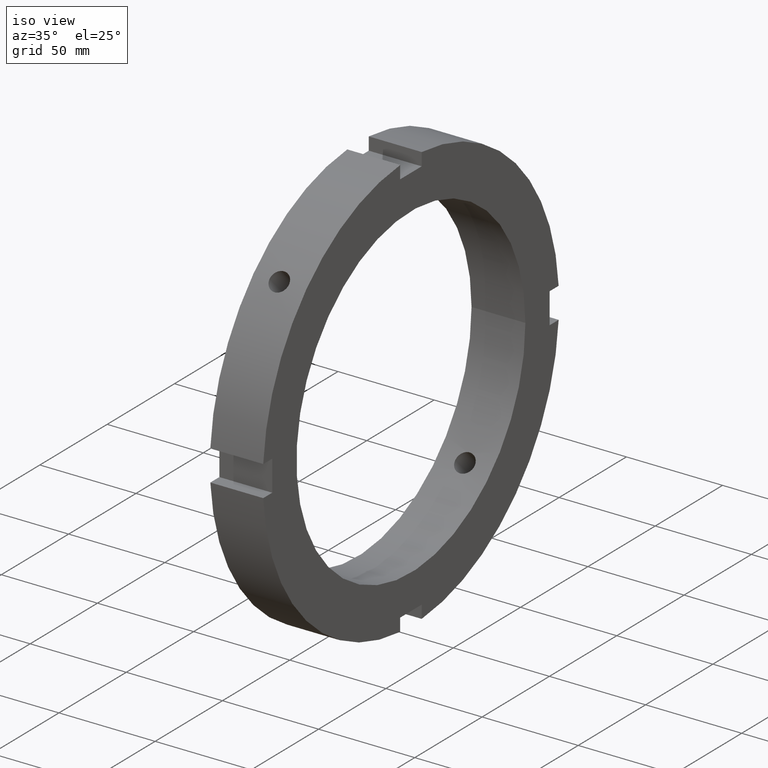
[diagram: clean part render]
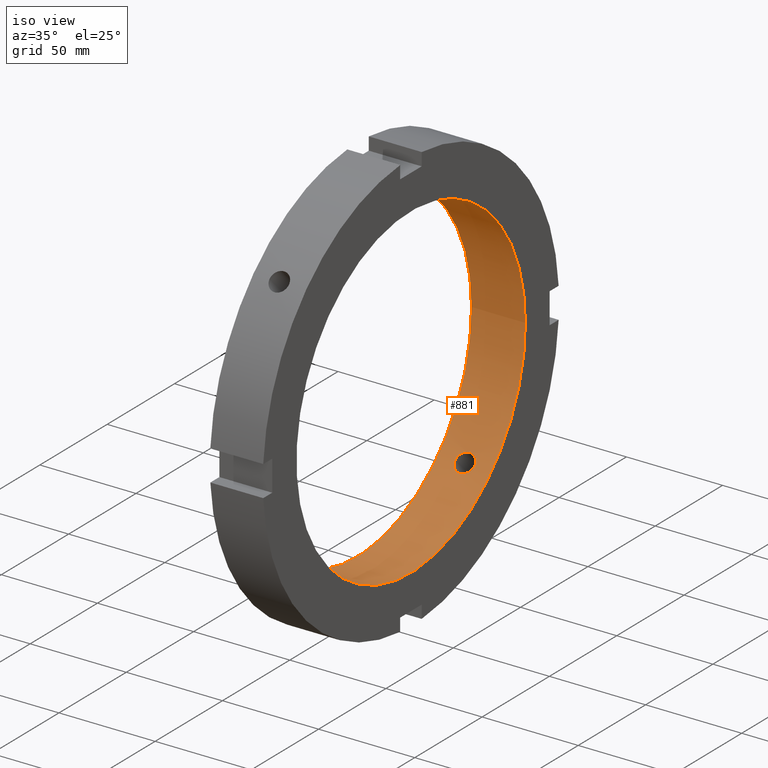
[diagram: same view with one face highlighted and labeled with its STEP entity id]
A machine part, iso view. The second image highlights one B-rep face of the part: STEP entity #881.
In plain terms, the highlighted cylindrical surface (bore or boss wall) has radius 85 mm, axis along (1, 0, 0).
Its self-contained STEP definition (entity closure, byte-faithful):
#114=CARTESIAN_POINT('',(13.999999999999984,-63.570790486762689,56.424769356091502));
#115=VERTEX_POINT('',#114);
#116=CARTESIAN_POINT('',(13.999999999999986,-63.570790486762697,56.424769356091488));
#117=CARTESIAN_POINT('',(14.634626594110108,-63.570790486762697,56.424769356091488));
#118=CARTESIAN_POINT('',(15.311451813514703,-63.486638961357151,56.520026250323916));
#119=CARTESIAN_POINT('',(16.556362291866936,-63.142025629633864,56.904756332241817));
#120=CARTESIAN_POINT('',(17.124460248411335,-62.881280358159856,57.193934416558889));
#121=CARTESIAN_POINT('',(18.021560692738326,-62.273623131484477,57.854968805061674));
#122=CARTESIAN_POINT('',(18.410415370807392,-61.886122592612949,58.270880221735190));
#123=CARTESIAN_POINT('',(18.926139162873280,-61.025871048909039,59.171198349220198));
#124=CARTESIAN_POINT('',(19.052999999999990,-60.552824979467673,59.655327822245411));
#125=CARTESIAN_POINT('',(19.052999999999976,-59.655327822245340,60.552824979467758));
#126=CARTESIAN_POINT('',(18.926139162873277,-59.171198349220127,61.025871048909096));
#127=CARTESIAN_POINT('',(18.410415370807385,-58.270880221735119,61.886122592613013));
#128=CARTESIAN_POINT('',(18.021560692738312,-57.854968805061603,62.273623131484541));
#129=CARTESIAN_POINT('',(17.124460248411324,-57.193934416558818,62.881280358159906));
#130=CARTESIAN_POINT('',(16.556362291866936,-56.904756332241732,63.142025629633920));
#131=CARTESIAN_POINT('',(15.311451813514701,-56.520026250323824,63.486638961357215));
#132=CARTESIAN_POINT('',(14.634626594110106,-56.424769356091431,63.570790486762746));
#133=CARTESIAN_POINT('',(13.365373405889862,-56.424769356091431,63.570790486762746));
#134=CARTESIAN_POINT('',(12.688548186485267,-56.520026250323824,63.486638961357215));
#135=CARTESIAN_POINT('',(11.443637708133032,-56.904756332241732,63.142025629633920));
#136=CARTESIAN_POINT('',(10.875539751588644,-57.193934416558818,62.881280358159906));
#137=CARTESIAN_POINT('',(9.978439307261654,-57.854968805061603,62.273623131484541));
#138=CARTESIAN_POINT('',(9.589584629192581,-58.270880221735119,61.886122592613013));
#139=CARTESIAN_POINT('',(9.073860837126691,-59.171198349220127,61.025871048909096));
#140=CARTESIAN_POINT('',(8.946999999999989,-59.655327822245340,60.552824979467758));
#141=CARTESIAN_POINT('',(8.946999999999978,-60.552824979467673,59.655327822245411));
#142=CARTESIAN_POINT('',(9.073860837126688,-61.025871048909025,59.171198349220198));
#143=CARTESIAN_POINT('',(9.589584629192578,-61.886122592612942,58.270880221735190));
#144=CARTESIAN_POINT('',(9.978439307261645,-62.273623131484477,57.854968805061674));
#145=CARTESIAN_POINT('',(10.875539751588633,-62.881280358159856,57.193934416558889));
#146=CARTESIAN_POINT('',(11.443637708133030,-63.142025629633864,56.904756332241817));
#147=CARTESIAN_POINT('',(12.688548186485264,-63.486638961357151,56.520026250323916));
#148=CARTESIAN_POINT('',(13.365373405889862,-63.570790486762697,56.424769356091488));
#149=CARTESIAN_POINT('',(13.999999999999984,-63.570790486762697,56.424769356091488));
#150=B_SPLINE_CURVE_WITH_KNOTS('',3,(#116,#117,#118,#119,#120,#121,#122,#123,#124,#125,#126,#127,#128,#129,#130,#131,#132,#133,#134,#135,#136,#137,#138,#139,#140,#141,#142,#143,#144,#145,#146,#147,#148,#149),.UNSPECIFIED.,.T.,.U.,(4,2,2,2,2,2,2,2,2,2,2,2,2,2,2,2,4),(0.0,0.190387978233037,0.380775956466074,0.571163854256345,0.761551752046616,0.951939649836886,1.142327547627156,1.332715525860192,1.523103504093228,1.713491482326264,1.903879460559300,2.094267358349570,2.284655256139840,2.475043153930112,2.665431051720383,2.855819029953420,3.046207008186456),.UNSPECIFIED.);
#151=EDGE_CURVE('',#115,#115,#150,.T.);
#202=CARTESIAN_POINT('',(13.999999999999984,56.424769356091488,-63.570790486762697));
#203=VERTEX_POINT('',#202);
#204=CARTESIAN_POINT('',(13.999999999999984,56.424769356091488,-63.570790486762697));
#205=CARTESIAN_POINT('',(13.365373405889862,56.424769356091488,-63.570790486762697));
#206=CARTESIAN_POINT('',(12.688548186485264,56.520026250323873,-63.486638961357187));
#207=CARTESIAN_POINT('',(11.443637708133028,56.904756332241774,-63.142025629633892));
#208=CARTESIAN_POINT('',(10.875539751588638,57.193934416558854,-62.881280358159870));
#209=CARTESIAN_POINT('',(9.978439307261645,57.854968805061631,-62.273623131484499));
#210=CARTESIAN_POINT('',(9.589584629192578,58.270880221735162,-61.886122592612985));
#211=CARTESIAN_POINT('',(9.073860837126688,59.171198349220177,-61.025871048909075));
#212=CARTESIAN_POINT('',(8.946999999999983,59.655327822245368,-60.552824979467701));
#213=CARTESIAN_POINT('',(8.946999999999983,60.552824979467715,-59.655327822245354));
#214=CARTESIAN_POINT('',(9.073860837126697,61.025871048909075,-59.171198349220177));
#215=CARTESIAN_POINT('',(9.589584629192583,61.886122592612985,-58.270880221735169));
#216=CARTESIAN_POINT('',(9.978439307261649,62.273623131484506,-57.854968805061624));
#217=CARTESIAN_POINT('',(10.875539751588633,62.881280358159884,-57.193934416558832));
#218=CARTESIAN_POINT('',(11.443637708133032,63.142025629633885,-56.904756332241774));
#219=CARTESIAN_POINT('',(12.688548186485267,63.486638961357180,-56.520026250323873));
#220=CARTESIAN_POINT('',(13.365373405889862,63.570790486762718,-56.424769356091460));
#221=CARTESIAN_POINT('',(14.634626594110106,63.570790486762718,-56.424769356091460));
#222=CARTESIAN_POINT('',(15.311451813514701,63.486638961357180,-56.520026250323873));
#223=CARTESIAN_POINT('',(16.556362291866936,63.142025629633885,-56.904756332241774));
#224=CARTESIAN_POINT('',(17.124460248411332,62.881280358159884,-57.193934416558832));
#225=CARTESIAN_POINT('',(18.021560692738316,62.273623131484506,-57.854968805061624));
#226=CARTESIAN_POINT('',(18.410415370807389,61.886122592612985,-58.270880221735140));
#227=CARTESIAN_POINT('',(18.926139162873280,61.025871048909075,-59.171198349220155));
#228=CARTESIAN_POINT('',(19.052999999999983,60.552824979467715,-59.655327822245354));
#229=CARTESIAN_POINT('',(19.052999999999983,59.655327822245390,-60.552824979467701));
#230=CARTESIAN_POINT('',(18.926139162873280,59.171198349220177,-61.025871048909046));
#231=CARTESIAN_POINT('',(18.410415370807392,58.270880221735169,-61.886122592612971));
#232=CARTESIAN_POINT('',(18.021560692738323,57.854968805061645,-62.273623131484506));
#233=CARTESIAN_POINT('',(17.124460248411332,57.193934416558854,-62.881280358159870));
#234=CARTESIAN_POINT('',(16.556362291866936,56.904756332241774,-63.142025629633892));
#235=CARTESIAN_POINT('',(15.311451813514701,56.520026250323873,-63.486638961357187));
#236=CARTESIAN_POINT('',(14.634626594110108,56.424769356091488,-63.570790486762697));
#237=CARTESIAN_POINT('',(13.999999999999986,56.424769356091488,-63.570790486762697));
#238=B_SPLINE_CURVE_WITH_KNOTS('',3,(#204,#205,#206,#207,#208,#209,#210,#211,#212,#213,#214,#215,#216,#217,#218,#219,#220,#221,#222,#223,#224,#225,#226,#227,#228,#229,#230,#231,#232,#233,#234,#235,#236,#237),.UNSPECIFIED.,.T.,.U.,(4,2,2,2,2,2,2,2,2,2,2,2,2,2,2,2,4),(0.0,0.190387978233036,0.380775956466073,0.571163854256344,0.761551752046615,0.951939649836885,1.142327547627155,1.332715525860191,1.523103504093228,1.713491482326265,1.903879460559301,2.094267358349571,2.284655256139841,2.475043153930112,2.665431051720383,2.855819029953420,3.046207008186456),.UNSPECIFIED.);
#239=EDGE_CURVE('',#203,#203,#238,.T.);
#712=CARTESIAN_POINT('',(27.999999999999986,85.0,0.0));
#713=VERTEX_POINT('',#712);
#714=CARTESIAN_POINT('',(27.999999999999986,0.0,0.0));
#715=DIRECTION('',(1.0,0.0,0.0));
#716=DIRECTION('',(0.0,1.0,0.0));
#717=AXIS2_PLACEMENT_3D('',#714,#715,#716);
#718=CIRCLE('',#717,85.0);
#719=EDGE_CURVE('',#713,#713,#718,.T.);
#805=CARTESIAN_POINT('',(-2.512926E-014,85.0,0.0));
#806=VERTEX_POINT('',#805);
#807=CARTESIAN_POINT('',(-2.512747E-014,0.0,0.0));
#808=DIRECTION('',(1.0,0.0,0.0));
#809=DIRECTION('',(0.0,1.0,0.0));
#810=AXIS2_PLACEMENT_3D('',#807,#808,#809);
#811=CIRCLE('',#810,85.0);
#812=EDGE_CURVE('',#806,#806,#811,.T.);
#864=CARTESIAN_POINT('',(13.999999999999979,0.0,0.0));
#865=DIRECTION('',(1.0,0.0,0.0));
#866=DIRECTION('',(0.0,1.0,0.0));
#867=AXIS2_PLACEMENT_3D('',#864,#865,#866);
#868=CYLINDRICAL_SURFACE('',#867,85.0);
#869=ORIENTED_EDGE('',*,*,#812,.F.);
#870=EDGE_LOOP('',(#869));
#871=FACE_OUTER_BOUND('',#870,.T.);
#872=ORIENTED_EDGE('',*,*,#151,.T.);
#873=EDGE_LOOP('',(#872));
#874=FACE_BOUND('',#873,.T.);
#875=ORIENTED_EDGE('',*,*,#239,.T.);
#876=EDGE_LOOP('',(#875));
#877=FACE_BOUND('',#876,.T.);
#878=ORIENTED_EDGE('',*,*,#719,.T.);
#879=EDGE_LOOP('',(#878));
#880=FACE_BOUND('',#879,.T.);
#881=ADVANCED_FACE('',(#871,#874,#877,#880),#868,.F.);